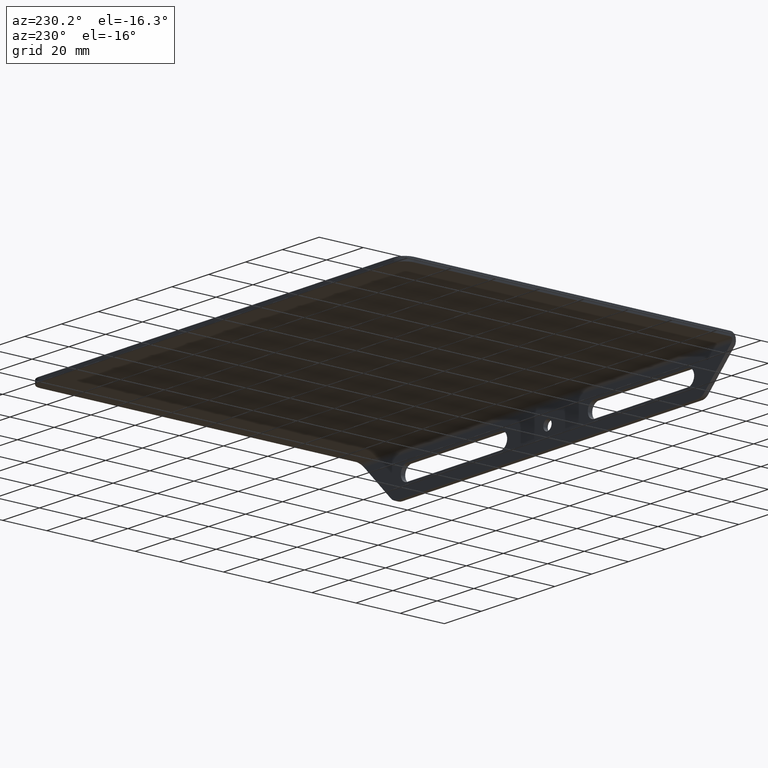
[diagram: clean part render]
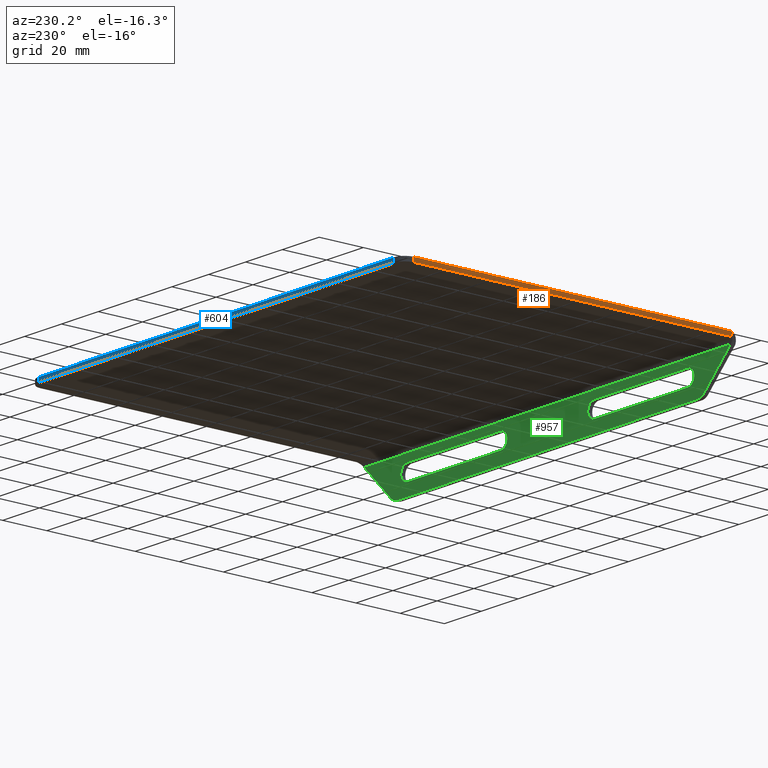
[diagram: same view with three faces highlighted in distinct colors, each labeled with its STEP entity id]
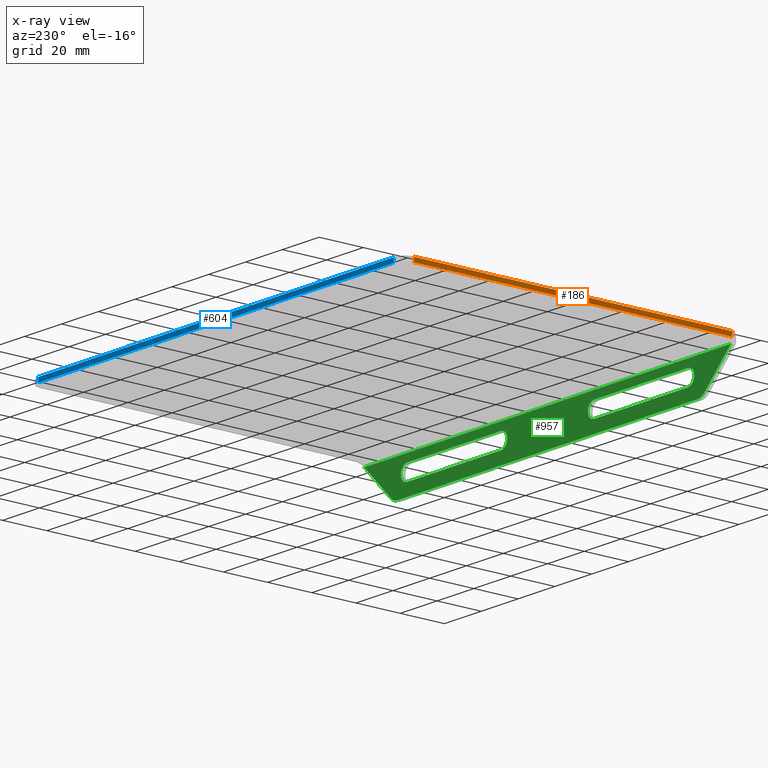
[diagram: x-ray of the same camera — body ghosted, the three highlighted faces saturated]
A machine part, auxiliary view with three faces highlighted in distinct colors.
The next image is the same camera in x-ray (body ghosted, the three faces saturated) — at least one of them is partly hidden behind the body in this view.
Their STEP definitions:

[orange] entity #186 — the highlighted planar face has unit normal (1, 0, 0).
#2 = LINE ( 'NONE', #314, #74 ) ;
#4 = ORIENTED_EDGE ( 'NONE', *, *, #66, .T. ) ;
#19 = CARTESIAN_POINT ( 'NONE',  ( 0.09999999999981827592, 3.167333600214277567, -1.466666666666426311 ) ) ;
#23 = CARTESIAN_POINT ( 'NONE',  ( 0.09999999999997054301, 146.9999999999999432, -1.999999999999998224 ) ) ;
#24 = ORIENTED_EDGE ( 'NONE', *, *, #511, .F. ) ;
#46 = EDGE_LOOP ( 'NONE', ( #161, #4, #360, #874, #866, #24 ) ) ;
#64 = DIRECTION ( 'NONE',  ( -1.225259087783363897E-16, 1.000000000000000000, 0.000000000000000000 ) ) ;
#66 = EDGE_CURVE ( 'NONE', #111, #150, #2, .T. ) ;
#74 = VECTOR ( 'NONE', #236, 1000.000000000000000 ) ;
#111 = VERTEX_POINT ( 'NONE', #669 ) ;
#117 = CIRCLE ( 'NONE', #534, 2.000000000000000000 ) ;
#150 = VERTEX_POINT ( 'NONE', #197 ) ;
#161 = ORIENTED_EDGE ( 'NONE', *, *, #844, .T. ) ;
#186 = ADVANCED_FACE ( 'NONE', ( #958 ), #502, .F. ) ;
#197 = CARTESIAN_POINT ( 'NONE',  ( 0.09999999999996816991, 146.9999999999999432, 0.000000000000000000 ) ) ;
#217 = DIRECTION ( 'NONE',  ( -0.000000000000000000, -0.000000000000000000, 1.000000000000000000 ) ) ;
#223 = DIRECTION ( 'NONE',  ( -1.000000000000000000, -1.225259087783363897E-16, -0.000000000000000000 ) ) ;
#236 = DIRECTION ( 'NONE',  ( -1.225259087783363651E-16, 1.000000000000000000, -0.000000000000000000 ) ) ;
#239 = EDGE_CURVE ( 'NONE', #589, #150, #608, .T. ) ;
#262 = DIRECTION ( 'NONE',  ( -1.225259087783363897E-16, 1.000000000000000000, 0.000000000000000000 ) ) ;
#277 = EDGE_CURVE ( 'NONE', #890, #589, #373, .T. ) ;
#314 = CARTESIAN_POINT ( 'NONE',  ( 0.09999999999997054301, 146.9999999999999432, 0.000000000000000000 ) ) ;
#333 = CARTESIAN_POINT ( 'NONE',  ( 0.09999999999998812616, 3.375500200160176600, -2.099999999999942801 ) ) ;
#337 = CARTESIAN_POINT ( 'NONE',  ( 0.09999999999980882515, 2.751000400322565653, -0.1999999999992623234 ) ) ;
#355 = AXIS2_PLACEMENT_3D ( 'NONE', #616, #223, #601 ) ;
#360 = ORIENTED_EDGE ( 'NONE', *, *, #239, .F. ) ;
#373 = LINE ( 'NONE', #1001, #701 ) ;
#388 = CIRCLE ( 'NONE', #355, 4.000000000000000888 ) ;
#404 = EDGE_CURVE ( 'NONE', #705, #890, #117, .T. ) ;
#417 = DIRECTION ( 'NONE',  ( 1.000000000000000000, 1.225259087783363897E-16, 0.000000000000000000 ) ) ;
#499 = VERTEX_POINT ( 'NONE', #574 ) ;
#502 = PLANE ( 'NONE',  #605 ) ;
#511 = EDGE_CURVE ( 'NONE', #499, #705, #769, .T. ) ;
#534 = AXIS2_PLACEMENT_3D ( 'NONE', #946, #855, #631 ) ;
#574 = CARTESIAN_POINT ( 'NONE',  ( 0.09999999999980882515, 2.751000400322565209, -0.1999999999992623234 ) ) ;
#583 = CARTESIAN_POINT ( 'NONE',  ( 0.09999999999998812616, 3.375500200160176600, -2.099999999999942801 ) ) ;
#589 = VERTEX_POINT ( 'NONE', #23 ) ;
#601 = DIRECTION ( 'NONE',  ( -1.219727444046192242E-16, 1.000000000000000000, 7.155734338404327687E-15 ) ) ;
#605 = AXIS2_PLACEMENT_3D ( 'NONE', #881, #417, #262 ) ;
#608 = LINE ( 'NONE', #687, #860 ) ;
#616 = CARTESIAN_POINT ( 'NONE',  ( 0.09999999999998898659, 3.999999999999999112, -4.000000000000000000 ) ) ;
#631 = DIRECTION ( 'NONE',  ( -1.219727444046192488E-16, 1.000000000000000000, 2.602085213965210642E-15 ) ) ;
#669 = CARTESIAN_POINT ( 'NONE',  ( 0.09999999999998898659, 3.999999999999995559, 0.000000000000000000 ) ) ;
#687 = CARTESIAN_POINT ( 'NONE',  ( 0.09999999999996816991, 146.9999999999999432, -20.00100000000000122 ) ) ;
#701 = VECTOR ( 'NONE', #64, 1000.000000000000000 ) ;
#705 = VERTEX_POINT ( 'NONE', #583 ) ;
#726 = CARTESIAN_POINT ( 'NONE',  ( 0.09999999999981812326, 2.959167000267846959, -0.8333333333330329440 ) ) ;
#769 =( BOUNDED_CURVE ( )  B_SPLINE_CURVE ( 3, ( #337, #726, #19, #333 ),
 .UNSPECIFIED., .F., .T. ) 
 B_SPLINE_CURVE_WITH_KNOTS ( ( 4, 4 ),
 ( 0.000000000000000000, 0.001999999999999950602 ),
 .UNSPECIFIED. ) 
 CURVE ( )  GEOMETRIC_REPRESENTATION_ITEM ( )  RATIONAL_B_SPLINE_CURVE ( ( 0.7620499723880598264, 0.7620499723880598264, 0.7620499723880598264, 0.7620499723880598264 ) ) 
 REPRESENTATION_ITEM ( '' )  );
#831 = CARTESIAN_POINT ( 'NONE',  ( 0.09999999999998898659, 3.999999999999997335, -2.000000000000000000 ) ) ;
#844 = EDGE_CURVE ( 'NONE', #499, #111, #388, .T. ) ;
#855 = DIRECTION ( 'NONE',  ( -1.000000000000000000, -1.225259087783363897E-16, -0.000000000000000000 ) ) ;
#860 = VECTOR ( 'NONE', #217, 1000.000000000000000 ) ;
#866 = ORIENTED_EDGE ( 'NONE', *, *, #404, .F. ) ;
#874 = ORIENTED_EDGE ( 'NONE', *, *, #277, .F. ) ;
#881 = CARTESIAN_POINT ( 'NONE',  ( 0.09999999999997054301, 146.9999999999999432, -20.00100000000000122 ) ) ;
#890 = VERTEX_POINT ( 'NONE', #831 ) ;
#946 = CARTESIAN_POINT ( 'NONE',  ( 0.09999999999998898659, 3.999999999999999112, -4.000000000000000000 ) ) ;
#958 = FACE_OUTER_BOUND ( 'NONE', #46, .T. ) ;
#1001 = CARTESIAN_POINT ( 'NONE',  ( 0.09999999999997054301, 146.9999999999999432, -1.999999999999998224 ) ) ;

[blue] entity #604 — the highlighted planar face has unit normal (0, -1, 0).
#84 = AXIS2_PLACEMENT_3D ( 'NONE', #426, #494, #438 ) ;
#115 = CARTESIAN_POINT ( 'NONE',  ( 5.100000000000005862, 151.9999999999999716, -1.999999999999998224 ) ) ;
#128 = CARTESIAN_POINT ( 'NONE',  ( 5.100000000000005862, 151.9999999999999716, 0.000000000000000000 ) ) ;
#137 = CARTESIAN_POINT ( 'NONE',  ( 198.0999999999999659, 152.0000000000000000, 0.000000000000000000 ) ) ;
#144 = CARTESIAN_POINT ( 'NONE',  ( 5.100000000000005862, 151.9999999999999716, -20.00100000000000122 ) ) ;
#171 = EDGE_LOOP ( 'NONE', ( #785, #471, #491, #577 ) ) ;
#172 = DIRECTION ( 'NONE',  ( -0.000000000000000000, -0.000000000000000000, 1.000000000000000000 ) ) ;
#183 = PLANE ( 'NONE',  #84 ) ;
#199 = LINE ( 'NONE', #144, #490 ) ;
#249 = VECTOR ( 'NONE', #172, 1000.000000000000000 ) ;
#261 = CARTESIAN_POINT ( 'NONE',  ( 198.0999999999999659, 152.0000000000000000, -20.00100000000000122 ) ) ;
#264 = VERTEX_POINT ( 'NONE', #137 ) ;
#324 = DIRECTION ( 'NONE',  ( 1.000000000000000000, 1.438112726198389480E-16, 0.000000000000000000 ) ) ;
#341 = EDGE_CURVE ( 'NONE', #820, #264, #488, .T. ) ;
#364 = CARTESIAN_POINT ( 'NONE',  ( 5.100000000000005862, 151.9999999999999716, -1.999999999999998224 ) ) ;
#426 = CARTESIAN_POINT ( 'NONE',  ( 5.100000000000005862, 151.9999999999999716, -20.00100000000000122 ) ) ;
#438 = DIRECTION ( 'NONE',  ( 1.000000000000000000, 1.438112726198389480E-16, 0.000000000000000000 ) ) ;
#471 = ORIENTED_EDGE ( 'NONE', *, *, #341, .T. ) ;
#488 = LINE ( 'NONE', #861, #553 ) ;
#490 = VECTOR ( 'NONE', #679, 1000.000000000000000 ) ;
#491 = ORIENTED_EDGE ( 'NONE', *, *, #505, .F. ) ;
#494 = DIRECTION ( 'NONE',  ( 1.438112726198389480E-16, -1.000000000000000000, 0.000000000000000000 ) ) ;
#505 = EDGE_CURVE ( 'NONE', #572, #264, #875, .T. ) ;
#520 = DIRECTION ( 'NONE',  ( 1.000000000000000000, 1.438112726198389480E-16, 0.000000000000000000 ) ) ;
#553 = VECTOR ( 'NONE', #324, 1000.000000000000000 ) ;
#572 = VERTEX_POINT ( 'NONE', #900 ) ;
#577 = ORIENTED_EDGE ( 'NONE', *, *, #885, .F. ) ;
#604 = ADVANCED_FACE ( 'NONE', ( #728 ), #183, .F. ) ;
#638 = VERTEX_POINT ( 'NONE', #115 ) ;
#679 = DIRECTION ( 'NONE',  ( -0.000000000000000000, -0.000000000000000000, 1.000000000000000000 ) ) ;
#728 = FACE_OUTER_BOUND ( 'NONE', #171, .T. ) ;
#749 = VECTOR ( 'NONE', #520, 1000.000000000000000 ) ;
#785 = ORIENTED_EDGE ( 'NONE', *, *, #858, .T. ) ;
#820 = VERTEX_POINT ( 'NONE', #128 ) ;
#858 = EDGE_CURVE ( 'NONE', #638, #820, #199, .T. ) ;
#861 = CARTESIAN_POINT ( 'NONE',  ( 5.100000000000005862, 151.9999999999999716, 0.000000000000000000 ) ) ;
#875 = LINE ( 'NONE', #261, #249 ) ;
#885 = EDGE_CURVE ( 'NONE', #638, #572, #993, .T. ) ;
#900 = CARTESIAN_POINT ( 'NONE',  ( 198.0999999999999659, 152.0000000000000000, -1.999999999999998224 ) ) ;
#993 = LINE ( 'NONE', #364, #749 ) ;

[green] entity #957 — the highlighted planar face has unit normal (-0, 1, 0).
#3 = CARTESIAN_POINT ( 'NONE',  ( 25.39999999999999858, 2.000000000000000000, -11.00000000000000178 ) ) ;
#8 = EDGE_CURVE ( 'NONE', #365, #279, #709, .T. ) ;
#12 = EDGE_LOOP ( 'NONE', ( #1007, #284, #832, #230 ) ) ;
#16 = CARTESIAN_POINT ( 'NONE',  ( 76.20000000000000284, 2.000000000000000000, -7.500000000000001776 ) ) ;
#17 = VERTEX_POINT ( 'NONE', #16 ) ;
#28 = LINE ( 'NONE', #962, #241 ) ;
#41 = CARTESIAN_POINT ( 'NONE',  ( 177.7999999999999829, 2.000000000000000000, -14.50000000000000178 ) ) ;
#56 = CARTESIAN_POINT ( 'NONE',  ( 101.5999999999999943, 2.000000000000000000, -13.24999999999999822 ) ) ;
#78 = VERTEX_POINT ( 'NONE', #981 ) ;
#80 = VERTEX_POINT ( 'NONE', #356 ) ;
#86 = AXIS2_PLACEMENT_3D ( 'NONE', #396, #482, #92 ) ;
#87 = DIRECTION ( 'NONE',  ( 0.000000000000000000, 0.000000000000000000, -1.000000000000000000 ) ) ;
#92 = DIRECTION ( 'NONE',  ( 0.000000000000000000, 0.000000000000000000, 1.000000000000000000 ) ) ;
#102 = CIRCLE ( 'NONE', #987, 5.000000000000000888 ) ;
#109 = VECTOR ( 'NONE', #690, 1000.000000000000000 ) ;
#113 = EDGE_CURVE ( 'NONE', #854, #365, #102, .T. ) ;
#120 = CIRCLE ( 'NONE', #86, 2.249999999999996891 ) ;
#158 = DIRECTION ( 'NONE',  ( 0.000000000000000000, 1.000000000000000000, -0.000000000000000000 ) ) ;
#160 = ORIENTED_EDGE ( 'NONE', *, *, #462, .T. ) ;
#165 = CARTESIAN_POINT ( 'NONE',  ( 101.5999999999999943, 2.000000000000000000, -11.00000000000000178 ) ) ;
#184 = AXIS2_PLACEMENT_3D ( 'NONE', #635, #318, #240 ) ;
#208 = VERTEX_POINT ( 'NONE', #676 ) ;
#213 = DIRECTION ( 'NONE',  ( -1.000000000000000000, -0.000000000000000000, 3.414809992080329023E-17 ) ) ;
#229 = DIRECTION ( 'NONE',  ( 0.000000000000000000, 1.000000000000000000, -0.000000000000000000 ) ) ;
#230 = ORIENTED_EDGE ( 'NONE', *, *, #648, .F. ) ;
#240 = DIRECTION ( 'NONE',  ( 0.000000000000000000, 0.000000000000000000, -1.000000000000000000 ) ) ;
#241 = VECTOR ( 'NONE', #737, 1000.000000000000000 ) ;
#243 = FACE_OUTER_BOUND ( 'NONE', #876, .T. ) ;
#248 = FACE_BOUND ( 'NONE', #250, .T. ) ;
#250 = EDGE_LOOP ( 'NONE', ( #955, #894, #260, #489 ) ) ;
#257 = CIRCLE ( 'NONE', #833, 3.499999999999999556 ) ;
#259 = DIRECTION ( 'NONE',  ( 1.000000000000000000, 0.000000000000000000, 1.707404996040164512E-17 ) ) ;
#260 = ORIENTED_EDGE ( 'NONE', *, *, #1006, .F. ) ;
#279 = VERTEX_POINT ( 'NONE', #913 ) ;
#281 = EDGE_CURVE ( 'NONE', #78, #208, #907, .T. ) ;
#284 = ORIENTED_EDGE ( 'NONE', *, *, #695, .F. ) ;
#292 = VECTOR ( 'NONE', #357, 1000.000000000000000 ) ;
#309 = DIRECTION ( 'NONE',  ( 0.000000000000000000, 1.000000000000000000, 0.000000000000000000 ) ) ;
#315 = CARTESIAN_POINT ( 'NONE',  ( 203.1999999999999886, 2.000000000000000000, 0.000000000000000000 ) ) ;
#318 = DIRECTION ( 'NONE',  ( 0.000000000000000000, 1.000000000000000000, -0.000000000000000000 ) ) ;
#320 = DIRECTION ( 'NONE',  ( 0.000000000000000000, 0.000000000000000000, -1.000000000000000000 ) ) ;
#323 = EDGE_CURVE ( 'NONE', #427, #862, #120, .T. ) ;
#326 = ORIENTED_EDGE ( 'NONE', *, *, #8, .T. ) ;
#342 = LINE ( 'NONE', #732, #734 ) ;
#345 = AXIS2_PLACEMENT_3D ( 'NONE', #716, #158, #87 ) ;
#351 = ORIENTED_EDGE ( 'NONE', *, *, #323, .F. ) ;
#354 = EDGE_CURVE ( 'NONE', #847, #551, #639, .T. ) ;
#356 = CARTESIAN_POINT ( 'NONE',  ( 201.2000000000000171, 2.000000000000000000, -4.000000000000000000 ) ) ;
#357 = DIRECTION ( 'NONE',  ( 0.7071067811865430208, 0.000000000000000000, -0.7071067811865521247 ) ) ;
#361 = CARTESIAN_POINT ( 'NONE',  ( 203.1999999999999886, 2.000000000000000000, -4.000000000000000000 ) ) ;
#365 = VERTEX_POINT ( 'NONE', #865 ) ;
#368 = CARTESIAN_POINT ( 'NONE',  ( 185.2000000000002160, 2.000000000000001776, -20.00000000000000000 ) ) ;
#377 = CARTESIAN_POINT ( 'NONE',  ( 186.6644660940675067, 2.000000000000001776, -18.53553390593270223 ) ) ;
#394 = DIRECTION ( 'NONE',  ( 0.000000000000000000, 1.000000000000000000, 0.000000000000000000 ) ) ;
#396 = CARTESIAN_POINT ( 'NONE',  ( 101.5999999999999943, 2.000000000000000000, -11.00000000000000178 ) ) ;
#402 = CARTESIAN_POINT ( 'NONE',  ( 20.07106781186526234, 2.000000000000000000, -15.00000000000000178 ) ) ;
#403 = VERTEX_POINT ( 'NONE', #644 ) ;
#405 = PLANE ( 'NONE',  #657 ) ;
#409 = DIRECTION ( 'NONE',  ( 0.000000000000000000, 0.000000000000000000, 1.000000000000000000 ) ) ;
#427 = VERTEX_POINT ( 'NONE', #554 ) ;
#430 = VECTOR ( 'NONE', #259, 1000.000000000000000 ) ;
#435 = VECTOR ( 'NONE', #213, 1000.000000000000000 ) ;
#437 = EDGE_CURVE ( 'NONE', #800, #495, #696, .T. ) ;
#441 = CIRCLE ( 'NONE', #1014, 3.500000000000001332 ) ;
#446 = DIRECTION ( 'NONE',  ( -1.000000000000000000, -0.000000000000000000, -0.000000000000000000 ) ) ;
#462 = EDGE_CURVE ( 'NONE', #279, #403, #514, .T. ) ;
#478 = DIRECTION ( 'NONE',  ( 0.000000000000000000, 0.000000000000000000, 1.000000000000000000 ) ) ;
#482 = DIRECTION ( 'NONE',  ( 0.000000000000000000, 1.000000000000000000, 0.000000000000000000 ) ) ;
#487 = VERTEX_POINT ( 'NONE', #744 ) ;
#489 = ORIENTED_EDGE ( 'NONE', *, *, #576, .F. ) ;
#495 = VERTEX_POINT ( 'NONE', #41 ) ;
#506 = CARTESIAN_POINT ( 'NONE',  ( 183.1289321881347405, 2.000000000000000000, -15.00000000000000000 ) ) ;
#514 = CIRCLE ( 'NONE', #740, 4.999999999999999112 ) ;
#518 = LINE ( 'NONE', #665, #430 ) ;
#542 = EDGE_CURVE ( 'NONE', #80, #748, #906, .T. ) ;
#551 = VERTEX_POINT ( 'NONE', #829 ) ;
#554 = CARTESIAN_POINT ( 'NONE',  ( 101.5999999999999943, 2.000000000000000000, -8.750000000000003553 ) ) ;
#568 = VECTOR ( 'NONE', #446, 1000.000000000000000 ) ;
#569 = DIRECTION ( 'NONE',  ( -1.000000000000000000, -0.000000000000000000, -0.000000000000000000 ) ) ;
#576 = EDGE_CURVE ( 'NONE', #487, #17, #518, .T. ) ;
#579 = DIRECTION ( 'NONE',  ( -1.000000000000000000, -0.000000000000000000, 3.414809992080330256E-17 ) ) ;
#628 = AXIS2_PLACEMENT_3D ( 'NONE', #165, #394, #629 ) ;
#629 = DIRECTION ( 'NONE',  ( 0.000000000000000000, 0.000000000000000000, 1.000000000000000000 ) ) ;
#634 = EDGE_LOOP ( 'NONE', ( #351, #979 ) ) ;
#635 = CARTESIAN_POINT ( 'NONE',  ( 127.0000000000000000, 2.000000000000000000, -11.00000000000000355 ) ) ;
#639 = CIRCLE ( 'NONE', #184, 3.499999999999999556 ) ;
#644 = CARTESIAN_POINT ( 'NONE',  ( 16.53553390593249617, 2.000000000000001776, -18.53553390593271288 ) ) ;
#648 = EDGE_CURVE ( 'NONE', #551, #800, #28, .T. ) ;
#657 = AXIS2_PLACEMENT_3D ( 'NONE', #315, #937, #786 ) ;
#661 = CARTESIAN_POINT ( 'NONE',  ( 0.000000000000000000, 2.000000000000001776, -2.000000000000000444 ) ) ;
#665 = CARTESIAN_POINT ( 'NONE',  ( 25.39999999999999858, 2.000000000000000000, -7.500000000000001776 ) ) ;
#675 = EDGE_CURVE ( 'NONE', #748, #403, #883, .T. ) ;
#676 = CARTESIAN_POINT ( 'NONE',  ( 25.39999999999999858, 2.000000000000000000, -14.50000000000000000 ) ) ;
#683 = CARTESIAN_POINT ( 'NONE',  ( 25.39999999999999858, 2.000000000000000000, -14.50000000000000000 ) ) ;
#690 = DIRECTION ( 'NONE',  ( 0.7071067811865429098, 0.000000000000000000, 0.7071067811865522357 ) ) ;
#694 = CARTESIAN_POINT ( 'NONE',  ( 177.7999999999999829, 2.000000000000000000, -7.500000000000000000 ) ) ;
#695 = EDGE_CURVE ( 'NONE', #495, #847, #342, .T. ) ;
#696 = CIRCLE ( 'NONE', #345, 3.500000000000001332 ) ;
#702 = CIRCLE ( 'NONE', #628, 2.249999999999996891 ) ;
#709 = LINE ( 'NONE', #856, #807 ) ;
#716 = CARTESIAN_POINT ( 'NONE',  ( 177.7999999999999829, 2.000000000000000000, -11.00000000000000178 ) ) ;
#732 = CARTESIAN_POINT ( 'NONE',  ( 127.0000000000000000, 2.000000000000000000, -14.50000000000000000 ) ) ;
#733 = ORIENTED_EDGE ( 'NONE', *, *, #542, .F. ) ;
#734 = VECTOR ( 'NONE', #579, 1000.000000000000000 ) ;
#737 = DIRECTION ( 'NONE',  ( 1.000000000000000000, 0.000000000000000000, 3.414809992080332105E-17 ) ) ;
#740 = AXIS2_PLACEMENT_3D ( 'NONE', #402, #777, #478 ) ;
#744 = CARTESIAN_POINT ( 'NONE',  ( 25.40000000000000568, 2.000000000000000000, -7.500000000000001776 ) ) ;
#745 = DIRECTION ( 'NONE',  ( 0.000000000000000000, 0.000000000000000000, 1.000000000000000000 ) ) ;
#748 = VERTEX_POINT ( 'NONE', #752 ) ;
#752 = CARTESIAN_POINT ( 'NONE',  ( 1.999999999999974021, 2.000000000000000000, -4.000000000000000000 ) ) ;
#757 = LINE ( 'NONE', #368, #109 ) ;
#768 = CARTESIAN_POINT ( 'NONE',  ( 127.0000000000000000, 2.000000000000000000, -14.50000000000000000 ) ) ;
#777 = DIRECTION ( 'NONE',  ( -0.000000000000000000, 1.000000000000000000, 0.000000000000000000 ) ) ;
#778 = EDGE_CURVE ( 'NONE', #854, #80, #757, .T. ) ;
#786 = DIRECTION ( 'NONE',  ( 0.000000000000000000, -0.000000000000000000, 1.000000000000000000 ) ) ;
#800 = VERTEX_POINT ( 'NONE', #694 ) ;
#806 = DIRECTION ( 'NONE',  ( -0.000000000000000000, 1.000000000000000000, 0.000000000000000000 ) ) ;
#807 = VECTOR ( 'NONE', #569, 1000.000000000000000 ) ;
#829 = CARTESIAN_POINT ( 'NONE',  ( 127.0000000000000284, 2.000000000000000000, -7.500000000000002665 ) ) ;
#832 = ORIENTED_EDGE ( 'NONE', *, *, #437, .F. ) ;
#833 = AXIS2_PLACEMENT_3D ( 'NONE', #3, #309, #409 ) ;
#847 = VERTEX_POINT ( 'NONE', #768 ) ;
#853 = FACE_BOUND ( 'NONE', #634, .T. ) ;
#854 = VERTEX_POINT ( 'NONE', #377 ) ;
#856 = CARTESIAN_POINT ( 'NONE',  ( 203.1999999999999886, 2.000000000000000000, -20.00000000000000000 ) ) ;
#862 = VERTEX_POINT ( 'NONE', #56 ) ;
#865 = CARTESIAN_POINT ( 'NONE',  ( 183.1289321881347405, 2.000000000000000000, -20.00000000000000000 ) ) ;
#876 = EDGE_LOOP ( 'NONE', ( #974, #963, #326, #160, #939, #733 ) ) ;
#883 = LINE ( 'NONE', #661, #292 ) ;
#894 = ORIENTED_EDGE ( 'NONE', *, *, #281, .F. ) ;
#901 = EDGE_CURVE ( 'NONE', #862, #427, #702, .T. ) ;
#906 = LINE ( 'NONE', #361, #568 ) ;
#907 = LINE ( 'NONE', #683, #435 ) ;
#913 = CARTESIAN_POINT ( 'NONE',  ( 20.07106781186526590, 2.000000000000000000, -20.00000000000000000 ) ) ;
#928 = CARTESIAN_POINT ( 'NONE',  ( 76.20000000000000284, 2.000000000000000000, -11.00000000000000355 ) ) ;
#929 = EDGE_CURVE ( 'NONE', #208, #487, #257, .T. ) ;
#937 = DIRECTION ( 'NONE',  ( -0.000000000000000000, 1.000000000000000000, 0.000000000000000000 ) ) ;
#939 = ORIENTED_EDGE ( 'NONE', *, *, #675, .F. ) ;
#943 = FACE_BOUND ( 'NONE', #12, .T. ) ;
#955 = ORIENTED_EDGE ( 'NONE', *, *, #929, .F. ) ;
#957 = ADVANCED_FACE ( 'NONE', ( #943, #248, #853, #243 ), #405, .T. ) ;
#962 = CARTESIAN_POINT ( 'NONE',  ( 127.0000000000000284, 2.000000000000000000, -7.500000000000002665 ) ) ;
#963 = ORIENTED_EDGE ( 'NONE', *, *, #113, .T. ) ;
#974 = ORIENTED_EDGE ( 'NONE', *, *, #778, .F. ) ;
#979 = ORIENTED_EDGE ( 'NONE', *, *, #901, .F. ) ;
#981 = CARTESIAN_POINT ( 'NONE',  ( 76.20000000000000284, 2.000000000000000000, -14.50000000000000178 ) ) ;
#987 = AXIS2_PLACEMENT_3D ( 'NONE', #506, #806, #745 ) ;
#1006 = EDGE_CURVE ( 'NONE', #17, #78, #441, .T. ) ;
#1007 = ORIENTED_EDGE ( 'NONE', *, *, #354, .F. ) ;
#1014 = AXIS2_PLACEMENT_3D ( 'NONE', #928, #229, #320 ) ;